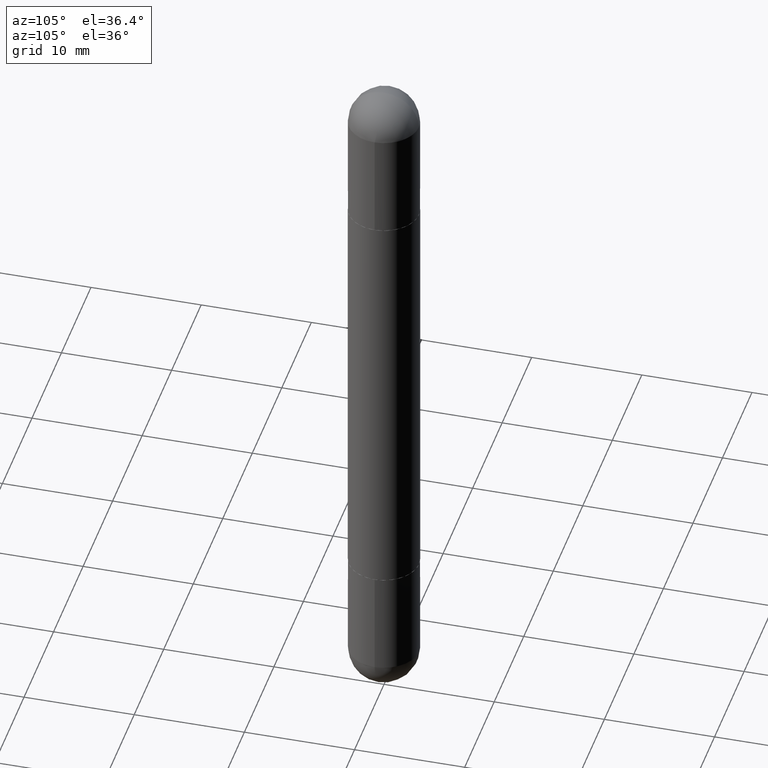
[diagram: clean part render]
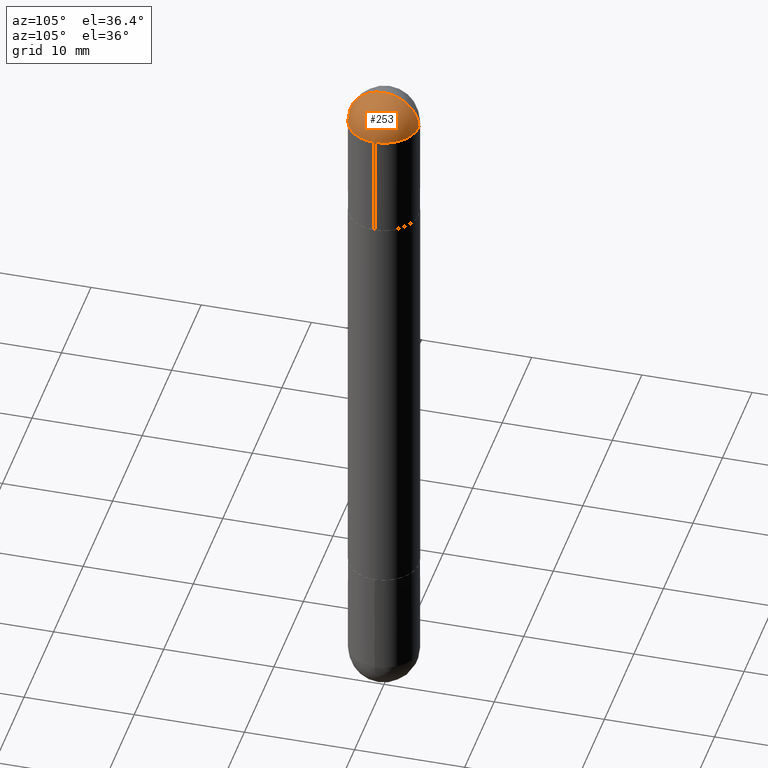
[diagram: same view with one face highlighted and labeled with its STEP entity id]
A machine part, auxiliary view. The second image highlights one B-rep face of the part: STEP entity #253.
In plain terms, the highlighted spherical surface has radius 3.175 mm.
Its self-contained STEP definition (entity closure, byte-faithful):
#11 = DIRECTION ( 'NONE',  ( 6.982962677686265922E-15, 1.000000000000000000, 3.551402391763536859E-15 ) ) ;
#12 = EDGE_CURVE ( 'NONE', #90, #67, #397, .T. ) ;
#51 = CARTESIAN_POINT ( 'NONE',  ( 5.787897026856327965E-29, -9.195231672753244292E-15, -2.561107494060246644E-16 ) ) ;
#57 = ORIENTED_EDGE ( 'NONE', *, *, #12, .F. ) ;
#67 = VERTEX_POINT ( 'NONE', #444 ) ;
#81 = AXIS2_PLACEMENT_3D ( 'NONE', #628, #362, #567 ) ;
#90 = VERTEX_POINT ( 'NONE', #51 ) ;
#91 = EDGE_CURVE ( 'NONE', #433, #307, #762, .T. ) ;
#92 = AXIS2_PLACEMENT_3D ( 'NONE', #551, #114, #237 ) ;
#114 = DIRECTION ( 'NONE',  ( 2.445468806185136597E-29, -3.491481338843145583E-15, 1.000000000000000000 ) ) ;
#118 = DIRECTION ( 'NONE',  ( 1.000000000000000000, -6.982962677686265922E-15, -4.883557194083112901E-29 ) ) ;
#163 = CARTESIAN_POINT ( 'NONE',  ( 5.476868636775814291E-29, -8.766450547892521992E-15, -0.1250000000000004441 ) ) ;
#176 = EDGE_LOOP ( 'NONE', ( #57, #767, #698, #435 ) ) ;
#215 = CARTESIAN_POINT ( 'NONE',  ( 0.1250000000000000000, -8.510485763430165164E-15, -0.1250000000000004441 ) ) ;
#237 = DIRECTION ( 'NONE',  ( 1.000000000000000000, -6.982962677686270655E-15, 0.000000000000000000 ) ) ;
#253 = ADVANCED_FACE ( 'NONE', ( #633 ), #717, .T. ) ;
#260 = DIRECTION ( 'NONE',  ( 1.000000000000000000, -6.982962677686270655E-15, 0.000000000000000000 ) ) ;
#307 = VERTEX_POINT ( 'NONE', #215 ) ;
#326 = AXIS2_PLACEMENT_3D ( 'NONE', #818, #642, #260 ) ;
#328 = CIRCLE ( 'NONE', #713, 0.1250000000000001943 ) ;
#332 = CARTESIAN_POINT ( 'NONE',  ( -8.575622497213856334E-16, -0.1250000000000086320, -0.1250000000000008882 ) ) ;
#351 = DIRECTION ( 'NONE',  ( 1.000000000000000000, -6.860497997771530774E-15, -4.840798879624142912E-29 ) ) ;
#362 = DIRECTION ( 'NONE',  ( -1.000000000000000000, 6.982962677686265922E-15, 4.883557194083112340E-29 ) ) ;
#397 = CIRCLE ( 'NONE', #81, 0.1250000000000001943 ) ;
#402 = EDGE_CURVE ( 'NONE', #307, #67, #460, .T. ) ;
#433 = VERTEX_POINT ( 'NONE', #332 ) ;
#435 = ORIENTED_EDGE ( 'NONE', *, *, #402, .T. ) ;
#444 = CARTESIAN_POINT ( 'NONE',  ( 8.728703347108403340E-16, 0.1249999999999915623, -0.1250000000000000000 ) ) ;
#460 = CIRCLE ( 'NONE', #326, 0.1250000000000000000 ) ;
#491 = DIRECTION ( 'NONE',  ( 6.860497997771529196E-15, 1.000000000000000000, 0.000000000000000000 ) ) ;
#531 = CARTESIAN_POINT ( 'NONE',  ( 5.476868636775814291E-29, -8.766450547892521992E-15, -0.1250000000000004441 ) ) ;
#551 = CARTESIAN_POINT ( 'NONE',  ( 5.807988414689700538E-29, -8.292268179752471696E-15, -0.1250000000000004441 ) ) ;
#567 = DIRECTION ( 'NONE',  ( -6.982962677686265133E-15, -1.000000000000000000, 0.000000000000000000 ) ) ;
#628 = CARTESIAN_POINT ( 'NONE',  ( 5.476868636775814291E-29, -8.766450547892521992E-15, -0.1250000000000004441 ) ) ;
#633 = FACE_OUTER_BOUND ( 'NONE', #176, .T. ) ;
#642 = DIRECTION ( 'NONE',  ( 2.445468806185136597E-29, -3.491481338843145583E-15, 1.000000000000000000 ) ) ;
#685 = AXIS2_PLACEMENT_3D ( 'NONE', #531, #118, #11 ) ;
#698 = ORIENTED_EDGE ( 'NONE', *, *, #91, .T. ) ;
#713 = AXIS2_PLACEMENT_3D ( 'NONE', #163, #351, #491 ) ;
#717 = SPHERICAL_SURFACE ( 'NONE', #685, 0.1250000000000001943 ) ;
#756 = EDGE_CURVE ( 'NONE', #90, #433, #328, .T. ) ;
#762 = CIRCLE ( 'NONE', #92, 0.1250000000000000000 ) ;
#767 = ORIENTED_EDGE ( 'NONE', *, *, #756, .T. ) ;
#818 = CARTESIAN_POINT ( 'NONE',  ( 5.807988414689700538E-29, -8.292268179752471696E-15, -0.1250000000000004441 ) ) ;